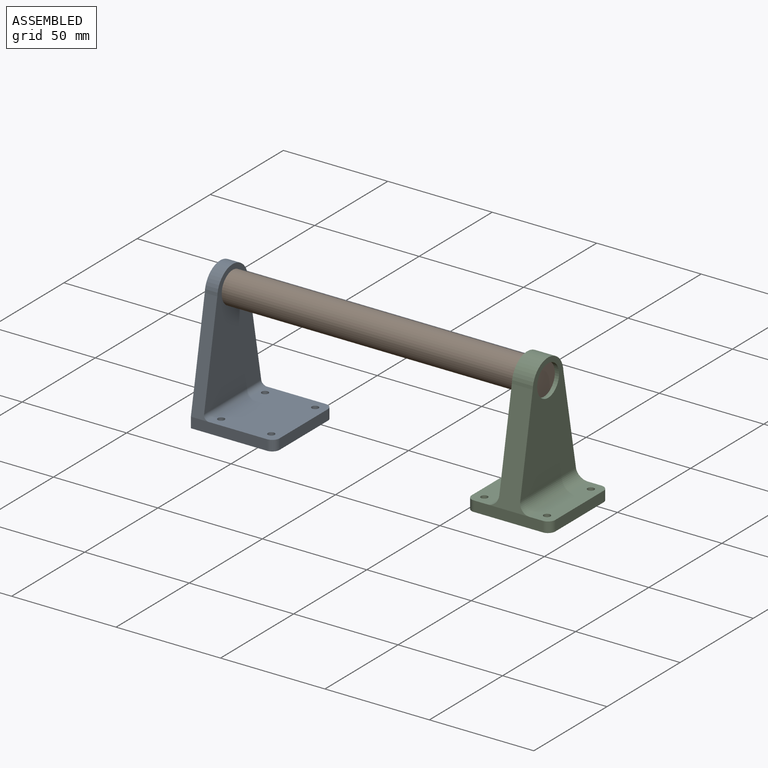
[diagram: assembled view]
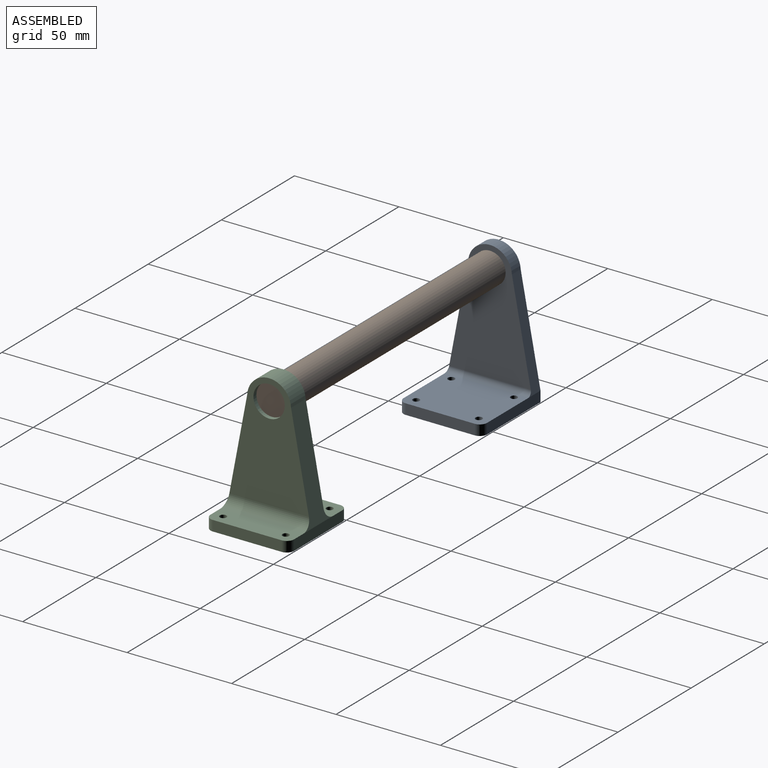
[diagram: assembled view, second angle]
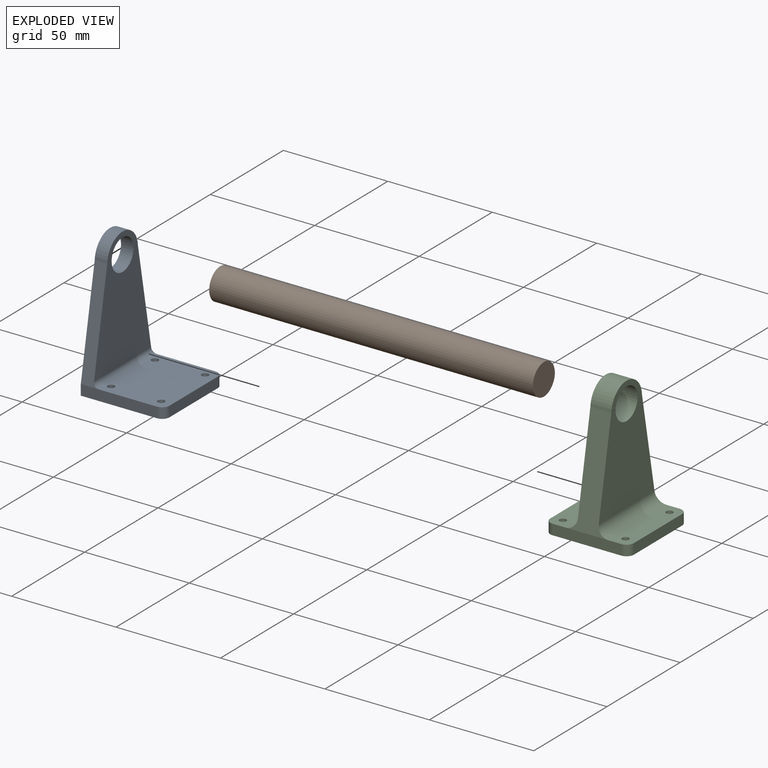
[diagram: exploded view]
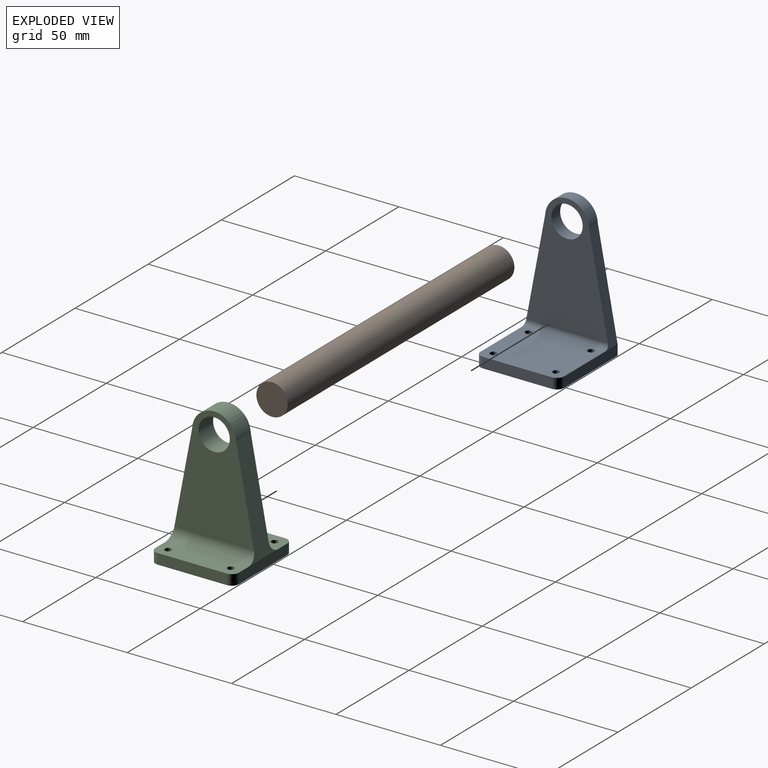
[diagram: exploded view, second angle]
ASSEMBLY  parts=3 mates=2
PART A: 18 faces, bbox 40x40x65 mm
  f0: plane 36.5x5mm, normal (0,-1,0), area 182.5mm2, adj f1,f4,f11,f12,f16
  f1: plane 65x40mm, normal (-1,0,0), area 1711.1mm2, adj f0,f2,f12,f13,f14,f15,f16
  f2: plane 36.5x5mm, normal (0,1,0), area 182.5mm2, adj f1,f9,f11,f12,f13
  f3: plane 57.5x39.05mm, normal (1,0,0), area 1412.3mm2, adj f13,f14,f15,f16,f17
  f4: cylinder r=3.5mm len=5mm, axis (0,0,-1), area 27.5mm2, adj f0,f5,f11,f12
  f5: plane 33x5mm, normal (1,0,0), area 165mm2, adj f4,f9,f11,f12
  f6: cylinder r=1.6mm len=5mm, axis (0,0,-1), area 50.3mm2, adj f11,f12
  f7: cylinder r=1.6mm len=5mm, axis (0,0,-1), area 50.3mm2, adj f11,f12
  f8: cylinder r=1.6mm len=5mm, axis (0,0,-1), area 50.3mm2, adj f11,f12
  f9: cylinder r=3.5mm len=5mm, axis (0,0,-1), area 27.5mm2, adj f2,f5,f11,f12
  f10: cylinder r=1.6mm len=5mm, axis (0,0,-1), area 50.3mm2, adj f11,f12
  f11: plane 40x31.5mm, normal (0,0,1), area 1222.6mm2, adj f0,f2,f4,f5,f6,f7,f8,f9
  f12: plane 40x40mm, normal (0,0,-1), area 1562.6mm2, adj f0,f1,f2,f4,f5,f6,f7,f8
  f13: plane 50x9.5mm, normal (0,0.98,0.19), area 306.7mm2, adj f1,f2,f3,f14,f17
  f14: cylinder r=10.51mm len=21mm, axis (1,0,0), area 192mm2, adj f1,f3,f13,f16
  f15: cylinder r=7.5mm len=15mm, axis (1,0,0), area 282.7mm2, adj f1,f3
  f16: plane 50x9.5mm, normal (0,-0.98,0.19), area 306.7mm2, adj f0,f1,f3,f14,f17
  f17: cylinder r=2.5mm len=40mm, axis (0,1,0), area 155.7mm2, adj f3,f11,f13,f16
PART B: 3 faces, bbox 15x15x155 mm
  f0: cylinder r=7.49mm len=155mm, axis (0,0,-1), area 7294.5mm2, adj f1,f2
  f1: plane 14.98x14.98mm, normal (0,0,1), area 176.2mm2, adj f0
  f2: plane 14.98x14.98mm, normal (0,0,-1), area 176.2mm2, adj f0
PART C: 23 faces, bbox 40x40x65 mm
  f0: plane 33x5mm, normal (0,1,0), area 165mm2, adj f5,f6,f7,f13,f18,f19
  f1: plane 33x5mm, normal (-1,0,0), area 165mm2, adj f5,f6,f7,f8
  f2: cylinder r=1.6mm len=5mm, axis (0,0,-1), area 50.3mm2, adj f5,f6
  f3: plane 33x5mm, normal (0,-1,0), area 165mm2, adj f5,f6,f8,f13,f16,f20
  f4: cylinder r=1.6mm len=5mm, axis (0,0,-1), area 50.3mm2, adj f5,f6
  f5: plane 40x10mm, normal (0,0,1), area 378.7mm2, adj f0,f1,f2,f3,f4,f7,f8,f21
  f6: plane 40x40mm, normal (0,0,-1), area 1557.3mm2, adj f0,f1,f2,f3,f4,f7,f8,f10
  f7: cylinder r=3.5mm len=5mm, axis (0,0,1), area 27.5mm2, adj f0,f1,f5,f6
  f8: cylinder r=3.5mm len=5mm, axis (0,0,-1), area 27.5mm2, adj f1,f3,f5,f6
  f9: plane 55x38.1mm, normal (-1,0,0), area 1315.9mm2, adj f15,f16,f17,f18,f21
  f10: plane 33x5mm, normal (1,0,0), area 165mm2, adj f6,f13,f19,f20
  f11: cylinder r=1.6mm len=5mm, axis (0,0,-1), area 50.3mm2, adj f6,f13
  f12: cylinder r=1.6mm len=5mm, axis (0,0,-1), area 50.3mm2, adj f6,f13
  f13: plane 40x10mm, normal (0,0,1), area 378.7mm2, adj f0,f3,f10,f11,f12,f19,f20,f22
  f14: plane 55x38.1mm, normal (1,0,0), area 1315.9mm2, adj f15,f16,f17,f18,f22
  f15: cylinder r=7.5mm len=15mm, axis (-1,0,0), area 471.2mm2, adj f9,f14
  f16: plane 50x20mm, normal (0,-0.98,0.19), area 519.9mm2, adj f3,f9,f14,f17,f21,f22
  f17: cylinder r=10.51mm len=21mm, axis (-1,0,0), area 320mm2, adj f9,f14,f16,f18
  f18: plane 50x20mm, normal (0,0.98,0.19), area 519.9mm2, adj f0,f9,f14,f17,f21,f22
  f19: cylinder r=3.5mm len=5mm, axis (0,0,-1), area 27.5mm2, adj f0,f6,f10,f13
  f20: cylinder r=3.5mm len=5mm, axis (0,0,1), area 27.5mm2, adj f3,f6,f10,f13
  f21: cylinder r=5mm len=40mm, axis (0,-1,0), area 308.7mm2, adj f5,f9,f16,f18
  f22: cylinder r=5mm len=40mm, axis (0,1,0), area 308.7mm2, adj f13,f14,f16,f18
PLACE A t=(44.52,42.81,-19.04)mm
PLACE B rot(axis=(0.71,0,-0.71),180deg) t=(176.67,33.03,35.96)mm
PLACE C t=(171.5,39.95,-19.04)mm
MATE cylindrical B.f0 <-> A.f15  axis (-1,0,0) through (21.67,33.03,35.96)mm
MATE cylindrical C.f15 <-> B.f0  axis (1,0,0) through (178.67,33.03,35.96)mm
